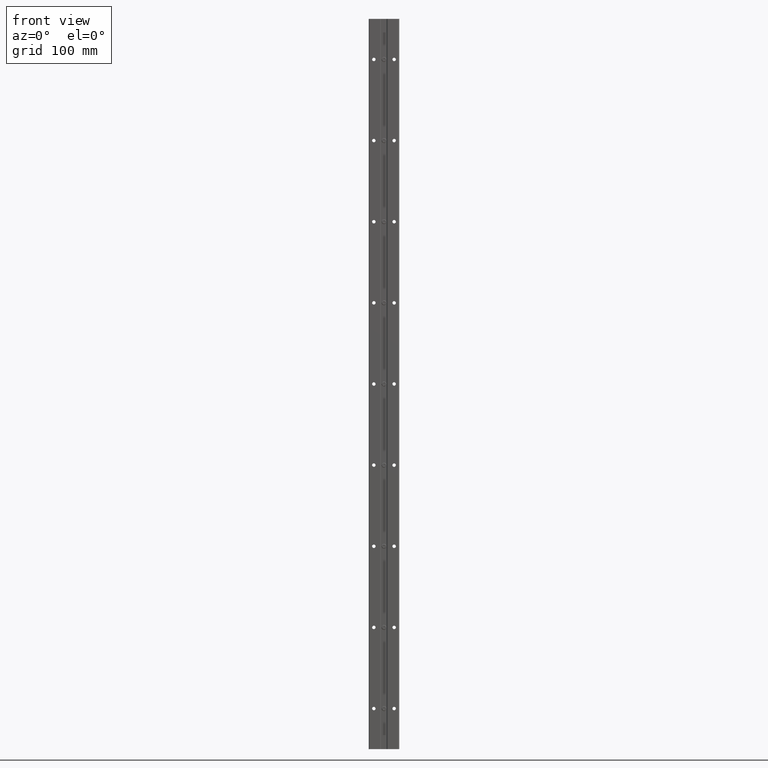
[diagram: clean part render]
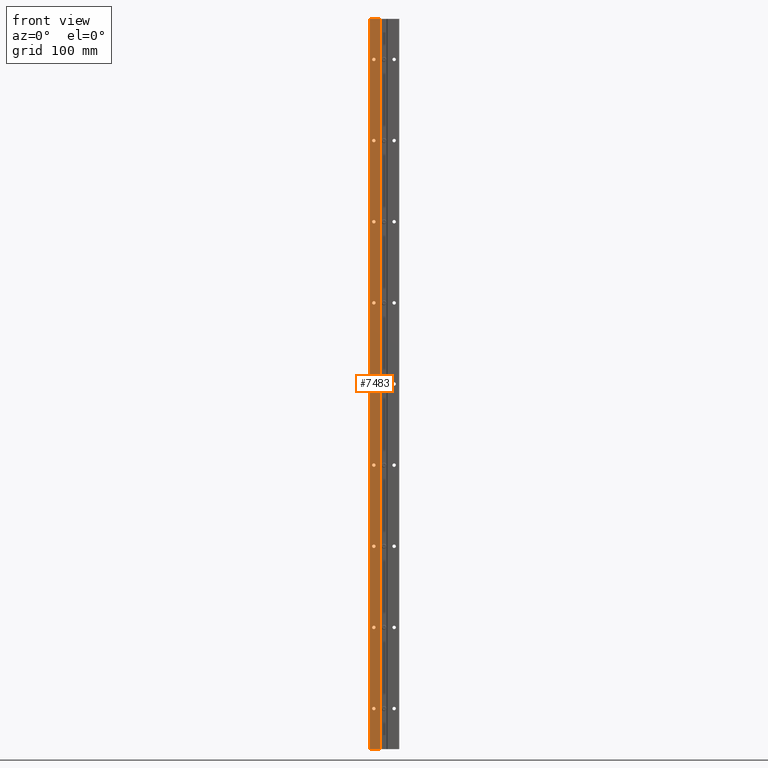
[diagram: same view with one face highlighted and labeled with its STEP entity id]
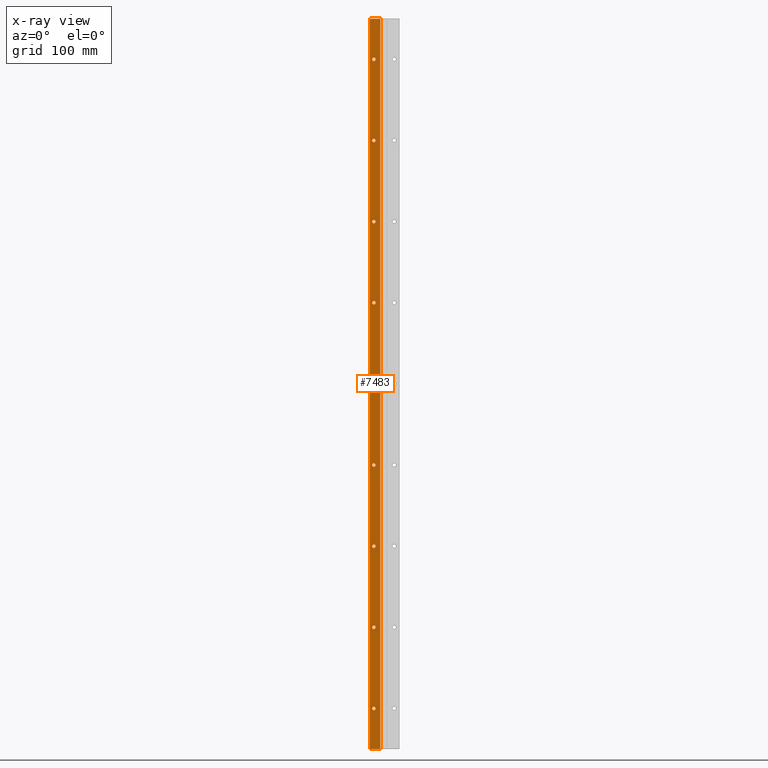
[diagram: x-ray of the same camera — body ghosted, the highlighted face saturated]
A machine part, front view. The second image highlights one B-rep face of the part: STEP entity #7483.
The next image is the same camera in x-ray: the body ghosted, the highlighted face saturated — about 0% of this face is hidden behind the body in this view.
In plain terms, the highlighted planar face has unit normal (0, 1, 0).
Its self-contained STEP definition (entity closure, byte-faithful):
#20 = EDGE_CURVE ( 'NONE', #5992, #4580, #8636, .T. ) ;
#52 = EDGE_CURVE ( 'NONE', #9243, #1838, #10398, .T. ) ;
#118 = DIRECTION ( 'NONE',  ( 0.000000000000000000, 1.000000000000000000, 0.000000000000000000 ) ) ;
#225 = VERTEX_POINT ( 'NONE', #9362 ) ;
#399 = VERTEX_POINT ( 'NONE', #7941 ) ;
#450 = AXIS2_PLACEMENT_3D ( 'NONE', #7826, #10553, #2277 ) ;
#484 = ORIENTED_EDGE ( 'NONE', *, *, #8091, .T. ) ;
#492 = VERTEX_POINT ( 'NONE', #9390 ) ;
#500 = CARTESIAN_POINT ( 'NONE',  ( -0.5000000000000000000, 0.000000000000000000, -14.08500000000000085 ) ) ;
#566 = AXIS2_PLACEMENT_3D ( 'NONE', #8646, #11483, #8473 ) ;
#720 = CARTESIAN_POINT ( 'NONE',  ( -0.5000000000000000000, 0.000000000000000000, -33.91499999999999915 ) ) ;
#815 = EDGE_CURVE ( 'NONE', #492, #11588, #7334, .T. ) ;
#819 = CIRCLE ( 'NONE', #11030, 0.08500000000000086653 ) ;
#967 = AXIS2_PLACEMENT_3D ( 'NONE', #6631, #118, #2031 ) ;
#1042 = EDGE_LOOP ( 'NONE', ( #11309, #4362 ) ) ;
#1179 = CIRCLE ( 'NONE', #5042, 0.08499999999999977018 ) ;
#1282 = EDGE_CURVE ( 'NONE', #8968, #225, #11548, .T. ) ;
#1285 = CARTESIAN_POINT ( 'NONE',  ( -0.5000000000000000000, 0.000000000000000000, -18.08500000000000085 ) ) ;
#1400 = CARTESIAN_POINT ( 'NONE',  ( -0.5000000000000000000, 0.000000000000000000, -29.91499999999999559 ) ) ;
#1524 = EDGE_CURVE ( 'NONE', #6317, #6233, #5402, .T. ) ;
#1555 = DIRECTION ( 'NONE',  ( 0.000000000000000000, 1.000000000000000000, 0.000000000000000000 ) ) ;
#1599 = VERTEX_POINT ( 'NONE', #720 ) ;
#1610 = CARTESIAN_POINT ( 'NONE',  ( -0.1844203811574926521, 0.000000000000000000, -36.00000000000000000 ) ) ;
#1813 = DIRECTION ( 'NONE',  ( 0.000000000000000000, 0.000000000000000000, 1.000000000000000000 ) ) ;
#1837 = EDGE_LOOP ( 'NONE', ( #8958, #8037 ) ) ;
#1838 = VERTEX_POINT ( 'NONE', #7224 ) ;
#2026 = ORIENTED_EDGE ( 'NONE', *, *, #3970, .T. ) ;
#2031 = DIRECTION ( 'NONE',  ( 0.000000000000000000, 0.000000000000000000, 1.000000000000000000 ) ) ;
#2113 = AXIS2_PLACEMENT_3D ( 'NONE', #8454, #1555, #3369 ) ;
#2116 = CARTESIAN_POINT ( 'NONE',  ( -0.5000000000000000000, 0.000000000000000000, -2.084999999999999964 ) ) ;
#2154 = CARTESIAN_POINT ( 'NONE',  ( -0.5000000000000000000, 0.000000000000000000, -25.91499999999999559 ) ) ;
#2277 = DIRECTION ( 'NONE',  ( 0.000000000000000000, 0.000000000000000000, 1.000000000000000000 ) ) ;
#2281 = DIRECTION ( 'NONE',  ( 0.000000000000000000, 1.000000000000000000, 0.000000000000000000 ) ) ;
#2341 = AXIS2_PLACEMENT_3D ( 'NONE', #11078, #7261, #10225 ) ;
#2347 = CARTESIAN_POINT ( 'NONE',  ( -0.5000000000000000000, 0.000000000000000000, -2.000000000000000000 ) ) ;
#2372 = CARTESIAN_POINT ( 'NONE',  ( -2.500000000000000000, 0.000000000000000000, 0.000000000000000000 ) ) ;
#2395 = ORIENTED_EDGE ( 'NONE', *, *, #8685, .F. ) ;
#2451 = ORIENTED_EDGE ( 'NONE', *, *, #5448, .T. ) ;
#2482 = AXIS2_PLACEMENT_3D ( 'NONE', #10145, #9305, #1813 ) ;
#2533 = CARTESIAN_POINT ( 'NONE',  ( -0.5000000000000000000, 0.000000000000000000, -34.00000000000000000 ) ) ;
#2550 = EDGE_LOOP ( 'NONE', ( #3848, #4319 ) ) ;
#2567 = VERTEX_POINT ( 'NONE', #3098 ) ;
#2626 = EDGE_CURVE ( 'NONE', #2567, #9449, #5387, .T. ) ;
#2635 = DIRECTION ( 'NONE',  ( 0.000000000000000000, 1.000000000000000000, 0.000000000000000000 ) ) ;
#2644 = DIRECTION ( 'NONE',  ( 0.000000000000000000, 1.000000000000000000, 0.000000000000000000 ) ) ;
#2789 = CARTESIAN_POINT ( 'NONE',  ( -0.5000000000000000000, 0.000000000000000000, -10.08500000000000085 ) ) ;
#2856 = EDGE_CURVE ( 'NONE', #6233, #6317, #4816, .T. ) ;
#2991 = FACE_BOUND ( 'NONE', #1837, .T. ) ;
#2994 = ORIENTED_EDGE ( 'NONE', *, *, #11874, .F. ) ;
#3018 = DIRECTION ( 'NONE',  ( 0.000000000000000000, 0.000000000000000000, 1.000000000000000000 ) ) ;
#3035 = DIRECTION ( 'NONE',  ( 0.000000000000000000, 0.000000000000000000, 1.000000000000000000 ) ) ;
#3098 = CARTESIAN_POINT ( 'NONE',  ( -0.7005796188425079674, -8.537024980200822558E-17, 0.000000000000000000 ) ) ;
#3108 = VECTOR ( 'NONE', #5516, 39.37007874015748143 ) ;
#3162 = CARTESIAN_POINT ( 'NONE',  ( -0.5000000000000000000, 0.000000000000000000, -25.99999999999999645 ) ) ;
#3215 = FACE_BOUND ( 'NONE', #3225, .T. ) ;
#3225 = EDGE_LOOP ( 'NONE', ( #5158, #484 ) ) ;
#3348 = VERTEX_POINT ( 'NONE', #7034 ) ;
#3369 = DIRECTION ( 'NONE',  ( 0.000000000000000000, 0.000000000000000000, 1.000000000000000000 ) ) ;
#3413 = ORIENTED_EDGE ( 'NONE', *, *, #6189, .T. ) ;
#3443 = CIRCLE ( 'NONE', #10387, 0.08500000000000004774 ) ;
#3454 = CARTESIAN_POINT ( 'NONE',  ( -0.5000000000000000000, 0.000000000000000000, -13.91499999999999915 ) ) ;
#3584 = LINE ( 'NONE', #7387, #3108 ) ;
#3614 = DIRECTION ( 'NONE',  ( 0.000000000000000000, 0.000000000000000000, 1.000000000000000000 ) ) ;
#3679 = LINE ( 'NONE', #10194, #6040 ) ;
#3848 = ORIENTED_EDGE ( 'NONE', *, *, #5542, .T. ) ;
#3861 = AXIS2_PLACEMENT_3D ( 'NONE', #4577, #8247, #8932 ) ;
#3899 = EDGE_CURVE ( 'NONE', #399, #3348, #1179, .T. ) ;
#3970 = EDGE_CURVE ( 'NONE', #4191, #7110, #5430, .T. ) ;
#3977 = CARTESIAN_POINT ( 'NONE',  ( -0.7005796188425085225, 0.000000000000000000, -37.75252057657289129 ) ) ;
#4038 = AXIS2_PLACEMENT_3D ( 'NONE', #8333, #4659, #8448 ) ;
#4080 = AXIS2_PLACEMENT_3D ( 'NONE', #6999, #10687, #11696 ) ;
#4126 = FACE_BOUND ( 'NONE', #11767, .T. ) ;
#4191 = VERTEX_POINT ( 'NONE', #5377 ) ;
#4292 = ORIENTED_EDGE ( 'NONE', *, *, #4715, .T. ) ;
#4319 = ORIENTED_EDGE ( 'NONE', *, *, #815, .T. ) ;
#4355 = CARTESIAN_POINT ( 'NONE',  ( -0.5000000000000000000, 0.000000000000000000, -5.999999999999999112 ) ) ;
#4362 = ORIENTED_EDGE ( 'NONE', *, *, #9397, .T. ) ;
#4389 = CIRCLE ( 'NONE', #8244, 0.08500000000000086653 ) ;
#4415 = DIRECTION ( 'NONE',  ( 0.000000000000000000, 1.000000000000000000, 0.000000000000000000 ) ) ;
#4501 = EDGE_LOOP ( 'NONE', ( #3413, #4292 ) ) ;
#4577 = CARTESIAN_POINT ( 'NONE',  ( -0.5000000000000000000, 0.000000000000000000, -10.00000000000000000 ) ) ;
#4580 = VERTEX_POINT ( 'NONE', #5336 ) ;
#4659 = DIRECTION ( 'NONE',  ( 0.000000000000000000, 1.000000000000000000, 0.000000000000000000 ) ) ;
#4679 = ORIENTED_EDGE ( 'NONE', *, *, #2856, .T. ) ;
#4696 = CARTESIAN_POINT ( 'NONE',  ( -0.5000000000000000000, 0.000000000000000000, -22.08500000000000085 ) ) ;
#4715 = EDGE_CURVE ( 'NONE', #7623, #10069, #819, .T. ) ;
#4790 = FACE_BOUND ( 'NONE', #9032, .T. ) ;
#4816 = CIRCLE ( 'NONE', #2113, 0.08500000000000086653 ) ;
#4858 = FACE_BOUND ( 'NONE', #4501, .T. ) ;
#5042 = AXIS2_PLACEMENT_3D ( 'NONE', #4355, #4415, #8035 ) ;
#5157 = AXIS2_PLACEMENT_3D ( 'NONE', #8154, #9122, #6358 ) ;
#5158 = ORIENTED_EDGE ( 'NONE', *, *, #6583, .T. ) ;
#5166 = CARTESIAN_POINT ( 'NONE',  ( -0.5000000000000000000, 0.000000000000000000, -34.08500000000000085 ) ) ;
#5304 = CARTESIAN_POINT ( 'NONE',  ( -0.7005796188425085225, -2.027543432797695280E-17, -36.00000000000000000 ) ) ;
#5315 = DIRECTION ( 'NONE',  ( 0.000000000000000000, 0.000000000000000000, 1.000000000000000000 ) ) ;
#5336 = CARTESIAN_POINT ( 'NONE',  ( -0.5000000000000000000, 0.000000000000000000, -26.08499999999999730 ) ) ;
#5362 = CARTESIAN_POINT ( 'NONE',  ( -0.5000000000000000000, 0.000000000000000000, -34.00000000000000000 ) ) ;
#5377 = CARTESIAN_POINT ( 'NONE',  ( -0.5000000000000000000, 0.000000000000000000, -21.91499999999999915 ) ) ;
#5387 = LINE ( 'NONE', #2372, #9058 ) ;
#5402 = CIRCLE ( 'NONE', #3861, 0.08500000000000086653 ) ;
#5430 = CIRCLE ( 'NONE', #9284, 0.08500000000000086653 ) ;
#5448 = EDGE_CURVE ( 'NONE', #5790, #9449, #3679, .T. ) ;
#5472 = EDGE_LOOP ( 'NONE', ( #8818, #4679 ) ) ;
#5516 = DIRECTION ( 'NONE',  ( -1.000000000000000000, 0.000000000000000000, 0.000000000000000000 ) ) ;
#5542 = EDGE_CURVE ( 'NONE', #11588, #492, #5660, .T. ) ;
#5628 = CIRCLE ( 'NONE', #4080, 0.08499999999999977018 ) ;
#5660 = CIRCLE ( 'NONE', #450, 0.08500000000000086653 ) ;
#5710 = FACE_BOUND ( 'NONE', #1042, .T. ) ;
#5738 = LINE ( 'NONE', #3977, #7977 ) ;
#5765 = FACE_OUTER_BOUND ( 'NONE', #10203, .T. ) ;
#5790 = VERTEX_POINT ( 'NONE', #1610 ) ;
#5814 = CIRCLE ( 'NONE', #9654, 0.08500000000000086653 ) ;
#5893 = ORIENTED_EDGE ( 'NONE', *, *, #8655, .T. ) ;
#5939 = FACE_BOUND ( 'NONE', #2550, .T. ) ;
#5992 = VERTEX_POINT ( 'NONE', #2154 ) ;
#6040 = VECTOR ( 'NONE', #9161, 39.37007874015748143 ) ;
#6182 = AXIS2_PLACEMENT_3D ( 'NONE', #5362, #2635, #6333 ) ;
#6189 = EDGE_CURVE ( 'NONE', #10069, #7623, #7281, .T. ) ;
#6233 = VERTEX_POINT ( 'NONE', #7029 ) ;
#6297 = DIRECTION ( 'NONE',  ( 0.000000000000000000, 1.000000000000000000, 0.000000000000000000 ) ) ;
#6302 = DIRECTION ( 'NONE',  ( 1.000000000000000000, 0.000000000000000000, 0.000000000000000000 ) ) ;
#6317 = VERTEX_POINT ( 'NONE', #2789 ) ;
#6333 = DIRECTION ( 'NONE',  ( 0.000000000000000000, 0.000000000000000000, 1.000000000000000000 ) ) ;
#6358 = DIRECTION ( 'NONE',  ( 0.000000000000000000, 0.000000000000000000, 1.000000000000000000 ) ) ;
#6405 = DIRECTION ( 'NONE',  ( 0.000000000000000000, 1.000000000000000000, 0.000000000000000000 ) ) ;
#6583 = EDGE_CURVE ( 'NONE', #9697, #1599, #11723, .T. ) ;
#6628 = EDGE_CURVE ( 'NONE', #225, #8968, #4389, .T. ) ;
#6631 = CARTESIAN_POINT ( 'NONE',  ( -0.5000000000000000000, 0.000000000000000000, -18.00000000000000000 ) ) ;
#6730 = FACE_BOUND ( 'NONE', #8198, .T. ) ;
#6829 = EDGE_CURVE ( 'NONE', #1838, #9243, #3443, .T. ) ;
#6892 = DIRECTION ( 'NONE',  ( 0.000000000000000000, 1.000000000000000000, 0.000000000000000000 ) ) ;
#6986 = VERTEX_POINT ( 'NONE', #5304 ) ;
#6999 = CARTESIAN_POINT ( 'NONE',  ( -0.5000000000000000000, 0.000000000000000000, -5.999999999999999112 ) ) ;
#7029 = CARTESIAN_POINT ( 'NONE',  ( -0.5000000000000000000, 0.000000000000000000, -9.914999999999999147 ) ) ;
#7034 = CARTESIAN_POINT ( 'NONE',  ( -0.5000000000000000000, 0.000000000000000000, -5.915000000000000036 ) ) ;
#7110 = VERTEX_POINT ( 'NONE', #4696 ) ;
#7224 = CARTESIAN_POINT ( 'NONE',  ( -0.5000000000000000000, 0.000000000000000000, -1.915000000000000036 ) ) ;
#7261 = DIRECTION ( 'NONE',  ( 0.000000000000000000, 1.000000000000000000, 0.000000000000000000 ) ) ;
#7281 = CIRCLE ( 'NONE', #5157, 0.08500000000000086653 ) ;
#7301 = DIRECTION ( 'NONE',  ( 0.000000000000000000, 0.000000000000000000, 1.000000000000000000 ) ) ;
#7334 = CIRCLE ( 'NONE', #967, 0.08500000000000086653 ) ;
#7387 = CARTESIAN_POINT ( 'NONE',  ( -0.7005796188425085225, 0.000000000000000000, -36.00000000000000000 ) ) ;
#7440 = DIRECTION ( 'NONE',  ( 0.000000000000000000, 0.000000000000000000, 1.000000000000000000 ) ) ;
#7483 = ADVANCED_FACE ( 'NONE', ( #5939, #4126, #11434, #4858, #3215, #2991, #4790, #5710, #6730, #5765 ), #10351, .F. ) ;
#7562 = CARTESIAN_POINT ( 'NONE',  ( -0.5000000000000000000, 0.000000000000000000, -22.00000000000000000 ) ) ;
#7623 = VERTEX_POINT ( 'NONE', #3454 ) ;
#7801 = DIRECTION ( 'NONE',  ( 0.000000000000000000, 0.000000000000000000, 1.000000000000000000 ) ) ;
#7826 = CARTESIAN_POINT ( 'NONE',  ( -0.5000000000000000000, 0.000000000000000000, -18.00000000000000000 ) ) ;
#7941 = CARTESIAN_POINT ( 'NONE',  ( -0.5000000000000000000, 0.000000000000000000, -6.084999999999999076 ) ) ;
#7977 = VECTOR ( 'NONE', #3018, 39.37007874015748143 ) ;
#8035 = DIRECTION ( 'NONE',  ( 0.000000000000000000, 0.000000000000000000, 1.000000000000000000 ) ) ;
#8037 = ORIENTED_EDGE ( 'NONE', *, *, #20, .T. ) ;
#8091 = EDGE_CURVE ( 'NONE', #1599, #9697, #8281, .T. ) ;
#8154 = CARTESIAN_POINT ( 'NONE',  ( -0.5000000000000000000, 0.000000000000000000, -14.00000000000000000 ) ) ;
#8198 = EDGE_LOOP ( 'NONE', ( #10592, #11082 ) ) ;
#8244 = AXIS2_PLACEMENT_3D ( 'NONE', #10984, #6405, #5315 ) ;
#8247 = DIRECTION ( 'NONE',  ( 0.000000000000000000, 1.000000000000000000, 0.000000000000000000 ) ) ;
#8279 = DIRECTION ( 'NONE',  ( 0.000000000000000000, 1.000000000000000000, 0.000000000000000000 ) ) ;
#8281 = CIRCLE ( 'NONE', #6182, 0.08500000000000086653 ) ;
#8333 = CARTESIAN_POINT ( 'NONE',  ( -0.5000000000000000000, 0.000000000000000000, -29.99999999999999645 ) ) ;
#8448 = DIRECTION ( 'NONE',  ( 0.000000000000000000, 0.000000000000000000, 1.000000000000000000 ) ) ;
#8454 = CARTESIAN_POINT ( 'NONE',  ( -0.5000000000000000000, 0.000000000000000000, -10.00000000000000000 ) ) ;
#8473 = DIRECTION ( 'NONE',  ( 0.000000000000000000, -0.000000000000000000, 1.000000000000000000 ) ) ;
#8551 = ORIENTED_EDGE ( 'NONE', *, *, #6628, .T. ) ;
#8636 = CIRCLE ( 'NONE', #9812, 0.08500000000000086653 ) ;
#8646 = CARTESIAN_POINT ( 'NONE',  ( -2.500000000000000000, 0.000000000000000000, 0.1250000000000000000 ) ) ;
#8655 = EDGE_CURVE ( 'NONE', #7110, #4191, #9281, .T. ) ;
#8685 = EDGE_CURVE ( 'NONE', #5790, #6986, #3584, .T. ) ;
#8818 = ORIENTED_EDGE ( 'NONE', *, *, #1524, .T. ) ;
#8932 = DIRECTION ( 'NONE',  ( 0.000000000000000000, 0.000000000000000000, 1.000000000000000000 ) ) ;
#8958 = ORIENTED_EDGE ( 'NONE', *, *, #9901, .T. ) ;
#8968 = VERTEX_POINT ( 'NONE', #1400 ) ;
#9032 = EDGE_LOOP ( 'NONE', ( #8551, #11455 ) ) ;
#9058 = VECTOR ( 'NONE', #6302, 39.37007874015748143 ) ;
#9122 = DIRECTION ( 'NONE',  ( 0.000000000000000000, 1.000000000000000000, 0.000000000000000000 ) ) ;
#9161 = DIRECTION ( 'NONE',  ( 0.000000000000000000, 0.000000000000000000, 1.000000000000000000 ) ) ;
#9162 = CARTESIAN_POINT ( 'NONE',  ( -0.1844203811574925966, 0.000000000000000000, 0.000000000000000000 ) ) ;
#9243 = VERTEX_POINT ( 'NONE', #2116 ) ;
#9281 = CIRCLE ( 'NONE', #2341, 0.08500000000000086653 ) ;
#9284 = AXIS2_PLACEMENT_3D ( 'NONE', #7562, #10341, #7440 ) ;
#9305 = DIRECTION ( 'NONE',  ( 0.000000000000000000, 1.000000000000000000, 0.000000000000000000 ) ) ;
#9362 = CARTESIAN_POINT ( 'NONE',  ( -0.5000000000000000000, 0.000000000000000000, -30.08499999999999730 ) ) ;
#9390 = CARTESIAN_POINT ( 'NONE',  ( -0.5000000000000000000, 0.000000000000000000, -17.91499999999999915 ) ) ;
#9397 = EDGE_CURVE ( 'NONE', #3348, #399, #5628, .T. ) ;
#9449 = VERTEX_POINT ( 'NONE', #9162 ) ;
#9477 = DIRECTION ( 'NONE',  ( 0.000000000000000000, 0.000000000000000000, 1.000000000000000000 ) ) ;
#9654 = AXIS2_PLACEMENT_3D ( 'NONE', #3162, #6892, #7801 ) ;
#9697 = VERTEX_POINT ( 'NONE', #5166 ) ;
#9812 = AXIS2_PLACEMENT_3D ( 'NONE', #11113, #6297, #7301 ) ;
#9901 = EDGE_CURVE ( 'NONE', #4580, #5992, #5814, .T. ) ;
#10069 = VERTEX_POINT ( 'NONE', #500 ) ;
#10145 = CARTESIAN_POINT ( 'NONE',  ( -0.5000000000000000000, 0.000000000000000000, -2.000000000000000000 ) ) ;
#10194 = CARTESIAN_POINT ( 'NONE',  ( -0.1844203811574926521, 0.000000000000000000, -37.75252057657289129 ) ) ;
#10203 = EDGE_LOOP ( 'NONE', ( #10449, #2994, #2395, #2451 ) ) ;
#10225 = DIRECTION ( 'NONE',  ( 0.000000000000000000, 0.000000000000000000, 1.000000000000000000 ) ) ;
#10290 = CARTESIAN_POINT ( 'NONE',  ( -0.5000000000000000000, 0.000000000000000000, -14.00000000000000000 ) ) ;
#10341 = DIRECTION ( 'NONE',  ( 0.000000000000000000, 1.000000000000000000, 0.000000000000000000 ) ) ;
#10351 = PLANE ( 'NONE',  #566 ) ;
#10387 = AXIS2_PLACEMENT_3D ( 'NONE', #2347, #2281, #9477 ) ;
#10398 = CIRCLE ( 'NONE', #2482, 0.08500000000000004774 ) ;
#10449 = ORIENTED_EDGE ( 'NONE', *, *, #2626, .F. ) ;
#10553 = DIRECTION ( 'NONE',  ( 0.000000000000000000, 1.000000000000000000, 0.000000000000000000 ) ) ;
#10592 = ORIENTED_EDGE ( 'NONE', *, *, #52, .T. ) ;
#10687 = DIRECTION ( 'NONE',  ( 0.000000000000000000, 1.000000000000000000, 0.000000000000000000 ) ) ;
#10957 = AXIS2_PLACEMENT_3D ( 'NONE', #2533, #2644, #3614 ) ;
#10984 = CARTESIAN_POINT ( 'NONE',  ( -0.5000000000000000000, 0.000000000000000000, -29.99999999999999645 ) ) ;
#11030 = AXIS2_PLACEMENT_3D ( 'NONE', #10290, #8279, #3035 ) ;
#11078 = CARTESIAN_POINT ( 'NONE',  ( -0.5000000000000000000, 0.000000000000000000, -22.00000000000000000 ) ) ;
#11082 = ORIENTED_EDGE ( 'NONE', *, *, #6829, .T. ) ;
#11113 = CARTESIAN_POINT ( 'NONE',  ( -0.5000000000000000000, 0.000000000000000000, -25.99999999999999645 ) ) ;
#11309 = ORIENTED_EDGE ( 'NONE', *, *, #3899, .T. ) ;
#11434 = FACE_BOUND ( 'NONE', #5472, .T. ) ;
#11455 = ORIENTED_EDGE ( 'NONE', *, *, #1282, .T. ) ;
#11483 = DIRECTION ( 'NONE',  ( 0.000000000000000000, 1.000000000000000000, 0.000000000000000000 ) ) ;
#11548 = CIRCLE ( 'NONE', #4038, 0.08500000000000086653 ) ;
#11588 = VERTEX_POINT ( 'NONE', #1285 ) ;
#11696 = DIRECTION ( 'NONE',  ( 0.000000000000000000, 0.000000000000000000, 1.000000000000000000 ) ) ;
#11723 = CIRCLE ( 'NONE', #10957, 0.08500000000000086653 ) ;
#11767 = EDGE_LOOP ( 'NONE', ( #5893, #2026 ) ) ;
#11874 = EDGE_CURVE ( 'NONE', #6986, #2567, #5738, .T. ) ;